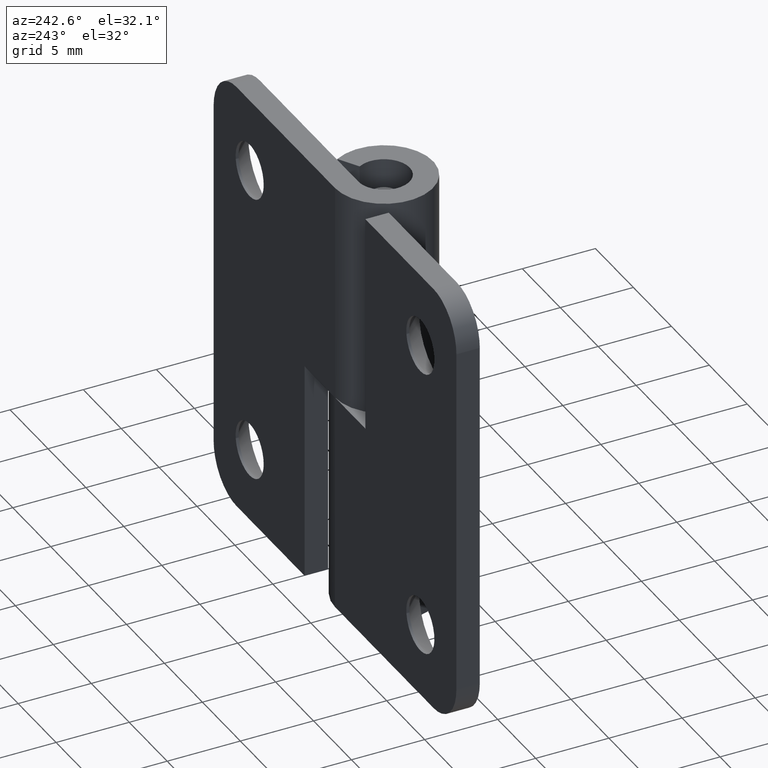
[diagram: clean part render]
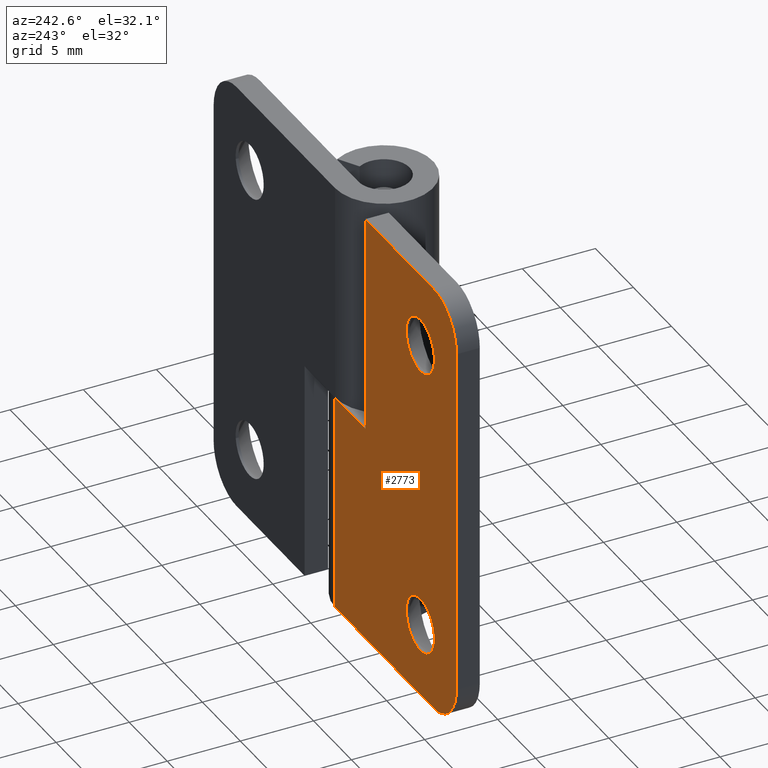
[diagram: same view with one face highlighted and labeled with its STEP entity id]
A machine part, auxiliary view. The second image highlights one B-rep face of the part: STEP entity #2773.
In plain terms, the highlighted face is a freeform B-spline surface patch.
Its self-contained STEP definition (entity closure, byte-faithful):
#1665=CARTESIAN_POINT('',(-9.412082011460690,3.349997997283936,24.788921680398019));
#1666=VERTEX_POINT('',#1665);
#1672=CARTESIAN_POINT('',(-11.250000000000000,3.349997997283935,23.150007999999801));
#1673=VERTEX_POINT('',#1672);
#1674=CARTESIAN_POINT('',(-9.412082011460690,3.349997997283936,24.788921680398019));
#1675=CARTESIAN_POINT('',(-9.600312603587378,3.349997997283936,23.150007999999801));
#1676=CARTESIAN_POINT('',(-11.250000000000000,3.349997997283935,23.150007999999801));
#1684=(BOUNDED_CURVE()B_SPLINE_CURVE(2,(#1674,#1675,#1676),.UNSPECIFIED.,.F.,.U.)B_SPLINE_CURVE_WITH_KNOTS((3,3),(0.269767772608016,0.500000000000000),.UNSPECIFIED.)CURVE()GEOMETRIC_REPRESENTATION_ITEM()RATIONAL_B_SPLINE_CURVE((0.957343703456362,0.730266167378285,1.0))REPRESENTATION_ITEM(''));
#1685=EDGE_CURVE('',#1666,#1673,#1684,.T.);
#1687=CARTESIAN_POINT('',(-13.096549368145370,3.349997997283936,24.887068202225290));
#1688=VERTEX_POINT('',#1687);
#1689=CARTESIAN_POINT('',(-11.250000000000000,3.349997997283935,23.150007999999801));
#1690=CARTESIAN_POINT('',(-12.990306223434029,3.349997997283936,23.150007999999794));
#1691=CARTESIAN_POINT('',(-13.096549368145372,3.349997997283935,24.887068202225286));
#1699=(BOUNDED_CURVE()B_SPLINE_CURVE(2,(#1689,#1690,#1691),.UNSPECIFIED.,.F.,.U.)B_SPLINE_CURVE_WITH_KNOTS((3,3),(0.500000000000000,0.739332962208172),.UNSPECIFIED.)CURVE()GEOMETRIC_REPRESENTATION_ITEM()RATIONAL_B_SPLINE_CURVE((1.0,0.719603993322761,0.976072041600770))REPRESENTATION_ITEM(''));
#1700=EDGE_CURVE('',#1673,#1688,#1699,.T.);
#1795=CARTESIAN_POINT('',(-11.250000000000000,3.349997997283935,26.850007999999800));
#1796=VERTEX_POINT('',#1795);
#1797=CARTESIAN_POINT('',(-13.096549368145372,3.349997997283936,24.887068202225290));
#1798=CARTESIAN_POINT('',(-13.099999999999998,3.349997997283935,24.943485387716059));
#1799=CARTESIAN_POINT('',(-13.100000000000000,3.349997997283935,25.000007999999799));
#1800=CARTESIAN_POINT('',(-13.100000000000001,3.349997997283935,26.850007999999800));
#1801=CARTESIAN_POINT('',(-11.250000000000000,3.349997997283935,26.850007999999800));
#1809=(BOUNDED_CURVE()B_SPLINE_CURVE(2,(#1797,#1798,#1799,#1800,#1801),.UNSPECIFIED.,.F.,.U.)B_SPLINE_CURVE_WITH_KNOTS((3,2,3),(0.739332962208171,0.750000000000000,1.0),.UNSPECIFIED.)CURVE()GEOMETRIC_REPRESENTATION_ITEM()RATIONAL_B_SPLINE_CURVE((0.976072041600769,0.987502787863786,1.0,0.707106781186548,1.0))REPRESENTATION_ITEM(''));
#1810=EDGE_CURVE('',#1688,#1796,#1809,.T.);
#1812=CARTESIAN_POINT('',(-11.250000000000000,3.349997997283935,26.850007999999800));
#1813=CARTESIAN_POINT('',(-9.400000000000000,3.349997997283935,26.850007999999800));
#1814=CARTESIAN_POINT('',(-9.399999999999999,3.349997997283935,25.000007999999799));
#1815=CARTESIAN_POINT('',(-9.399999999999999,3.349997997283935,24.894119023453914));
#1816=CARTESIAN_POINT('',(-9.412082011460690,3.349997997283936,24.788921680398019));
#1824=(BOUNDED_CURVE()B_SPLINE_CURVE(2,(#1812,#1813,#1814,#1815,#1816),.UNSPECIFIED.,.F.,.U.)B_SPLINE_CURVE_WITH_KNOTS((3,2,3),(0.0,0.250000000000000,0.269767772608016),.UNSPECIFIED.)CURVE()GEOMETRIC_REPRESENTATION_ITEM()RATIONAL_B_SPLINE_CURVE((1.0,0.707106781186548,1.0,0.976840613808263,0.957343703456362))REPRESENTATION_ITEM(''));
#1825=EDGE_CURVE('',#1796,#1666,#1824,.T.);
#1993=CARTESIAN_POINT('',(-9.412082011460690,3.349997997283936,4.788913680398222));
#1994=VERTEX_POINT('',#1993);
#2000=CARTESIAN_POINT('',(-11.250000000000000,3.349997997283935,3.150000000000000));
#2001=VERTEX_POINT('',#2000);
#2002=CARTESIAN_POINT('',(-9.412082011460690,3.349997997283936,4.788913680398223));
#2003=CARTESIAN_POINT('',(-9.600312603587378,3.349997997283936,3.150000000000000));
#2004=CARTESIAN_POINT('',(-11.250000000000000,3.349997997283935,3.150000000000000));
#2012=(BOUNDED_CURVE()B_SPLINE_CURVE(2,(#2002,#2003,#2004),.UNSPECIFIED.,.F.,.U.)B_SPLINE_CURVE_WITH_KNOTS((3,3),(0.269767772608016,0.500000000000000),.UNSPECIFIED.)CURVE()GEOMETRIC_REPRESENTATION_ITEM()RATIONAL_B_SPLINE_CURVE((0.957343703456362,0.730266167378285,1.0))REPRESENTATION_ITEM(''));
#2013=EDGE_CURVE('',#1994,#2001,#2012,.T.);
#2015=CARTESIAN_POINT('',(-13.096549368145370,3.349997997283936,4.887060202225488));
#2016=VERTEX_POINT('',#2015);
#2017=CARTESIAN_POINT('',(-11.250000000000000,3.349997997283935,3.150000000000000));
#2018=CARTESIAN_POINT('',(-12.990306223434029,3.349997997283936,3.149999999999998));
#2019=CARTESIAN_POINT('',(-13.096549368145372,3.349997997283935,4.887060202225488));
#2027=(BOUNDED_CURVE()B_SPLINE_CURVE(2,(#2017,#2018,#2019),.UNSPECIFIED.,.F.,.U.)B_SPLINE_CURVE_WITH_KNOTS((3,3),(0.500000000000000,0.739332962208172),.UNSPECIFIED.)CURVE()GEOMETRIC_REPRESENTATION_ITEM()RATIONAL_B_SPLINE_CURVE((1.0,0.719603993322761,0.976072041600770))REPRESENTATION_ITEM(''));
#2028=EDGE_CURVE('',#2001,#2016,#2027,.T.);
#2123=CARTESIAN_POINT('',(-11.250000000000000,3.349997997283935,6.850000000000001));
#2124=VERTEX_POINT('',#2123);
#2125=CARTESIAN_POINT('',(-13.096549368145373,3.349997997283936,4.887060202225488));
#2126=CARTESIAN_POINT('',(-13.100000000000000,3.349997997283936,4.943477387716261));
#2127=CARTESIAN_POINT('',(-13.100000000000000,3.349997997283935,5.0));
#2128=CARTESIAN_POINT('',(-13.100000000000001,3.349997997283935,6.850000000000001));
#2129=CARTESIAN_POINT('',(-11.250000000000000,3.349997997283935,6.850000000000001));
#2137=(BOUNDED_CURVE()B_SPLINE_CURVE(2,(#2125,#2126,#2127,#2128,#2129),.UNSPECIFIED.,.F.,.U.)B_SPLINE_CURVE_WITH_KNOTS((3,2,3),(0.739332962208171,0.750000000000000,1.0),.UNSPECIFIED.)CURVE()GEOMETRIC_REPRESENTATION_ITEM()RATIONAL_B_SPLINE_CURVE((0.976072041600769,0.987502787863786,1.0,0.707106781186548,1.0))REPRESENTATION_ITEM(''));
#2138=EDGE_CURVE('',#2016,#2124,#2137,.T.);
#2140=CARTESIAN_POINT('',(-11.250000000000000,3.349997997283935,6.850000000000001));
#2141=CARTESIAN_POINT('',(-9.400000000000000,3.349997997283935,6.850000000000001));
#2142=CARTESIAN_POINT('',(-9.399999999999999,3.349997997283935,5.0));
#2143=CARTESIAN_POINT('',(-9.399999999999999,3.349997997283935,4.894111023454120));
#2144=CARTESIAN_POINT('',(-9.412082011460690,3.349997997283936,4.788913680398223));
#2152=(BOUNDED_CURVE()B_SPLINE_CURVE(2,(#2140,#2141,#2142,#2143,#2144),.UNSPECIFIED.,.F.,.U.)B_SPLINE_CURVE_WITH_KNOTS((3,2,3),(0.0,0.250000000000000,0.269767772608016),.UNSPECIFIED.)CURVE()GEOMETRIC_REPRESENTATION_ITEM()RATIONAL_B_SPLINE_CURVE((1.0,0.707106781186548,1.0,0.976840613808263,0.957343703456362))REPRESENTATION_ITEM(''));
#2153=EDGE_CURVE('',#2124,#1994,#2152,.T.);
#2291=CARTESIAN_POINT('',(-4.0,3.349998000000000,15.0));
#2292=VERTEX_POINT('',#2291);
#2300=CARTESIAN_POINT('',(-4.0,3.349998000000000,30.000008000000001));
#2301=VERTEX_POINT('',#2300);
#2302=CARTESIAN_POINT('',(-4.0,3.349998000000000,15.0));
#2303=CARTESIAN_POINT('',(-4.0,3.349998000000000,30.000008000000001));
#2304=QUASI_UNIFORM_CURVE('',1,(#2302,#2303),.UNSPECIFIED.,.F.,.U.);
#2305=EDGE_CURVE('',#2292,#2301,#2304,.T.);
#2350=CARTESIAN_POINT('',(-0.003660600497906,3.349998000000000,15.0));
#2351=VERTEX_POINT('',#2350);
#2357=CARTESIAN_POINT('',(-0.003660600497906,3.349998000000000,15.0));
#2358=CARTESIAN_POINT('',(-4.0,3.349998000000000,15.0));
#2359=QUASI_UNIFORM_CURVE('',1,(#2357,#2358),.UNSPECIFIED.,.F.,.U.);
#2360=EDGE_CURVE('',#2351,#2292,#2359,.T.);
#2430=CARTESIAN_POINT('',(-13.0,3.349998000000000,30.000008000000001));
#2431=VERTEX_POINT('',#2430);
#2437=CARTESIAN_POINT('',(-16.0,3.349998000000000,27.000008000000001));
#2438=VERTEX_POINT('',#2437);
#2439=CARTESIAN_POINT('',(-13.0,3.349998000000000,30.000008000000001));
#2440=CARTESIAN_POINT('',(-15.999999999999998,3.349998000000000,30.000008000000005));
#2441=CARTESIAN_POINT('',(-16.0,3.349998000000000,27.000008000000001));
#2449=(BOUNDED_CURVE()B_SPLINE_CURVE(2,(#2439,#2440,#2441),.UNSPECIFIED.,.F.,.U.)CURVE()GEOMETRIC_REPRESENTATION_ITEM()QUASI_UNIFORM_CURVE()RATIONAL_B_SPLINE_CURVE((1.0,0.707106781186548,1.0))REPRESENTATION_ITEM(''));
#2450=EDGE_CURVE('',#2431,#2438,#2449,.T.);
#2491=CARTESIAN_POINT('',(-16.0,3.349998000000000,3.0));
#2492=VERTEX_POINT('',#2491);
#2498=CARTESIAN_POINT('',(-13.0,3.349998000000000,0.0));
#2499=VERTEX_POINT('',#2498);
#2500=CARTESIAN_POINT('',(-16.0,3.349998000000000,3.0));
#2501=CARTESIAN_POINT('',(-15.999999999999998,3.349998000000000,0.0));
#2502=CARTESIAN_POINT('',(-13.0,3.349998000000000,0.0));
#2510=(BOUNDED_CURVE()B_SPLINE_CURVE(2,(#2500,#2501,#2502),.UNSPECIFIED.,.F.,.U.)CURVE()GEOMETRIC_REPRESENTATION_ITEM()QUASI_UNIFORM_CURVE()RATIONAL_B_SPLINE_CURVE((1.0,0.707106781186548,1.0))REPRESENTATION_ITEM(''));
#2511=EDGE_CURVE('',#2492,#2499,#2510,.T.);
#2534=CARTESIAN_POINT('',(-0.003660600497906,3.349998000000000,0.0));
#2535=VERTEX_POINT('',#2534);
#2536=CARTESIAN_POINT('',(-0.003660600497906,3.349998000000000,0.0));
#2537=CARTESIAN_POINT('',(-13.0,3.349998000000000,0.0));
#2538=QUASI_UNIFORM_CURVE('',1,(#2536,#2537),.UNSPECIFIED.,.F.,.U.);
#2539=EDGE_CURVE('',#2535,#2499,#2538,.T.);
#2597=CARTESIAN_POINT('',(-16.0,3.349998000000000,3.0));
#2598=CARTESIAN_POINT('',(-16.0,3.349998000000000,27.000008000000001));
#2599=QUASI_UNIFORM_CURVE('',1,(#2597,#2598),.UNSPECIFIED.,.F.,.U.);
#2600=EDGE_CURVE('',#2492,#2438,#2599,.T.);
#2678=CARTESIAN_POINT('',(-0.003660600497906,3.349998000000000,0.0));
#2679=CARTESIAN_POINT('',(-0.003660600497906,3.349998000000000,15.0));
#2680=QUASI_UNIFORM_CURVE('',1,(#2678,#2679),.UNSPECIFIED.,.F.,.U.);
#2681=EDGE_CURVE('',#2535,#2351,#2680,.T.);
#2704=CARTESIAN_POINT('',(-4.0,3.349998000000000,30.000008000000001));
#2705=CARTESIAN_POINT('',(-13.0,3.349998000000000,30.000008000000001));
#2706=QUASI_UNIFORM_CURVE('',1,(#2704,#2705),.UNSPECIFIED.,.F.,.U.);
#2707=EDGE_CURVE('',#2301,#2431,#2706,.T.);
#2746=CARTESIAN_POINT('',(-16.799017122001121,3.349998000000000,-1.498500234273062));
#2747=CARTESIAN_POINT('',(-16.799017122001121,3.349998000000000,31.498506893168209));
#2748=CARTESIAN_POINT('',(0.795356950558473,3.349998000000000,-1.498500234273062));
#2749=CARTESIAN_POINT('',(0.795356950558473,3.349998000000000,31.498506893168209));
#2750=B_SPLINE_SURFACE_WITH_KNOTS('',1,1,((#2746,#2748),(#2747,#2749)),.UNSPECIFIED.,.F.,.F.,.U.,(2,2),(2,2),(0.0,32.997007127441272),(0.0,17.594374072559599),.UNSPECIFIED.);
#2751=ORIENTED_EDGE('',*,*,#2707,.F.);
#2752=ORIENTED_EDGE('',*,*,#2305,.F.);
#2753=ORIENTED_EDGE('',*,*,#2360,.F.);
#2754=ORIENTED_EDGE('',*,*,#2681,.F.);
#2755=ORIENTED_EDGE('',*,*,#2539,.T.);
#2756=ORIENTED_EDGE('',*,*,#2511,.F.);
#2757=ORIENTED_EDGE('',*,*,#2600,.T.);
#2758=ORIENTED_EDGE('',*,*,#2450,.F.);
#2759=EDGE_LOOP('',(#2751,#2752,#2753,#2754,#2755,#2756,#2757,#2758));
#2760=FACE_OUTER_BOUND('',#2759,.T.);
#2761=ORIENTED_EDGE('',*,*,#2028,.F.);
#2762=ORIENTED_EDGE('',*,*,#2013,.F.);
#2763=ORIENTED_EDGE('',*,*,#2153,.F.);
#2764=ORIENTED_EDGE('',*,*,#2138,.F.);
#2765=EDGE_LOOP('',(#2761,#2762,#2763,#2764));
#2766=FACE_BOUND('',#2765,.T.);
#2767=ORIENTED_EDGE('',*,*,#1700,.F.);
#2768=ORIENTED_EDGE('',*,*,#1685,.F.);
#2769=ORIENTED_EDGE('',*,*,#1825,.F.);
#2770=ORIENTED_EDGE('',*,*,#1810,.F.);
#2771=EDGE_LOOP('',(#2767,#2768,#2769,#2770));
#2772=FACE_BOUND('',#2771,.T.);
#2773=ADVANCED_FACE('',(#2760,#2766,#2772),#2750,.T.);